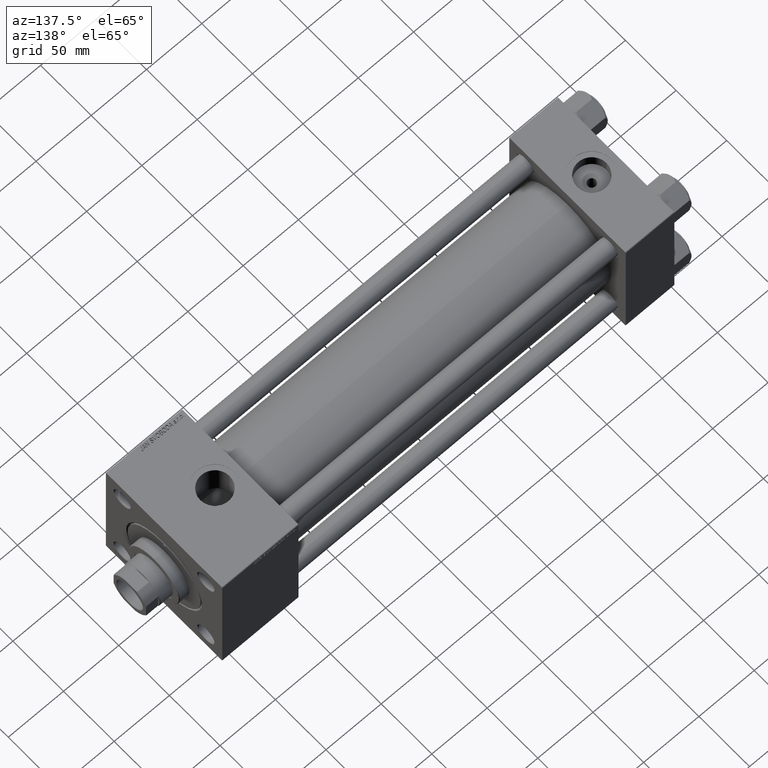
[diagram: clean part render]
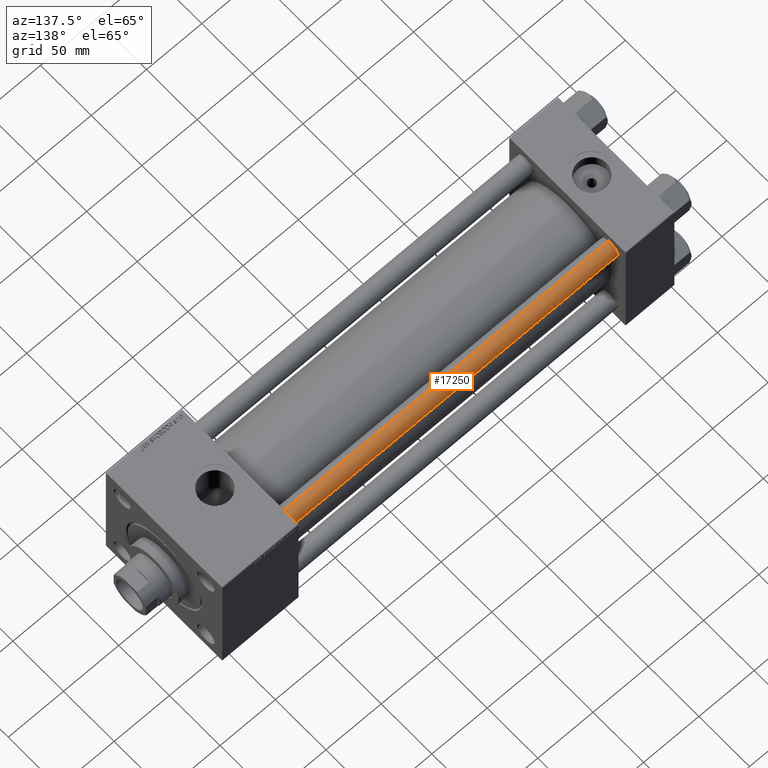
[diagram: same view with one face highlighted and labeled with its STEP entity id]
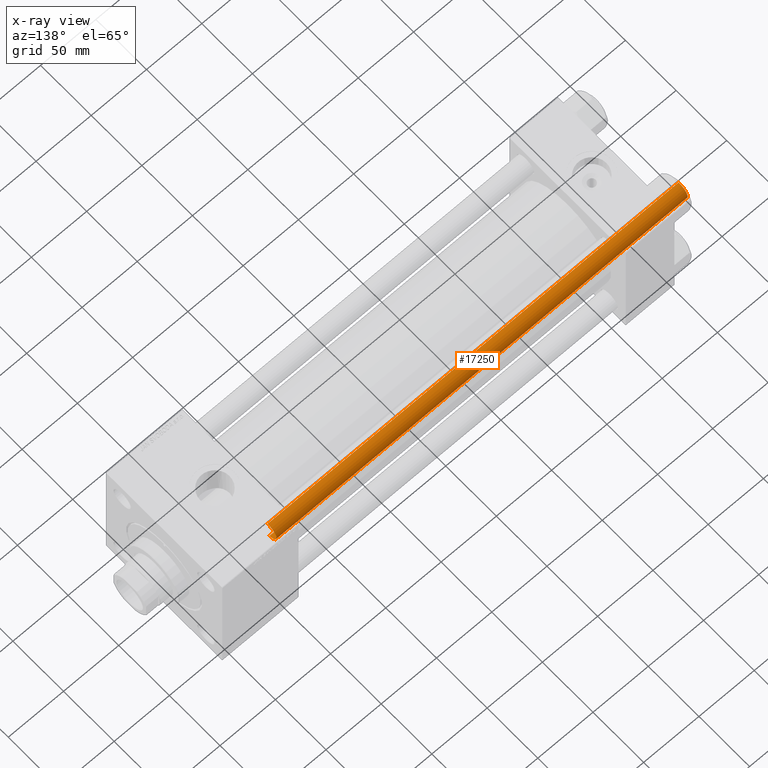
[diagram: x-ray of the same camera — body ghosted, the highlighted face saturated]
A machine part, auxiliary view. The second image highlights one B-rep face of the part: STEP entity #17250.
The next image is the same camera in x-ray: the body ghosted, the highlighted face saturated — about 0% of this face is hidden behind the body in this view.
In plain terms, the highlighted cylindrical surface (edge-blend (fillet) strip) has radius 8 mm, axis along (-1, 0, 0).
Its self-contained STEP definition (entity closure, byte-faithful):
#107 = VERTEX_POINT ( 'NONE', #27677 ) ;
#509 = FACE_OUTER_BOUND ( 'NONE', #46579, .T. ) ;
#859 = AXIS2_PLACEMENT_3D ( 'NONE', #5320, #39594, #16159 ) ;
#3296 = VERTEX_POINT ( 'NONE', #46994 ) ;
#4868 = VECTOR ( 'NONE', #5790, 1000.000000000000000 ) ;
#4938 = CIRCLE ( 'NONE', #11481, 8.000000000000000000 ) ;
#5253 = CARTESIAN_POINT ( 'NONE',  ( 0.000000000000000000, 0.000000000000000000, 0.5000000000000559552 ) ) ;
#5320 = CARTESIAN_POINT ( 'NONE',  ( 0.000000000000000000, 0.000000000000000000, 373.0000000000000000 ) ) ;
#5790 = DIRECTION ( 'NONE',  ( -0.000000000000000000, -0.000000000000000000, -1.000000000000000000 ) ) ;
#7792 = DIRECTION ( 'NONE',  ( 1.000000000000000000, 0.000000000000000000, 0.000000000000000000 ) ) ;
#8873 = EDGE_CURVE ( 'NONE', #107, #42735, #42538, .T. ) ;
#11114 = DIRECTION ( 'NONE',  ( -0.000000000000000000, -0.000000000000000000, -1.000000000000000000 ) ) ;
#11130 = DIRECTION ( 'NONE',  ( 0.000000000000000000, 0.000000000000000000, -1.000000000000000000 ) ) ;
#11481 = AXIS2_PLACEMENT_3D ( 'NONE', #5253, #33529, #48416 ) ;
#11627 = LINE ( 'NONE', #27057, #29973 ) ;
#12240 = EDGE_CURVE ( 'NONE', #17440, #3296, #4938, .T. ) ;
#16159 = DIRECTION ( 'NONE',  ( -1.000000000000000000, 0.000000000000000000, 0.000000000000000000 ) ) ;
#17250 = ADVANCED_FACE ( 'NONE', ( #509 ), #21758, .T. ) ;
#17440 = VERTEX_POINT ( 'NONE', #19928 ) ;
#19928 = CARTESIAN_POINT ( 'NONE',  ( 8.000000000000000000, 9.797174393178825657E-16, 0.5000000000000559552 ) ) ;
#21758 = CYLINDRICAL_SURFACE ( 'NONE', #859, 8.000000000000000000 ) ;
#27057 = CARTESIAN_POINT ( 'NONE',  ( 8.000000000000000000, 9.797174393178825657E-16, 373.0000000000000000 ) ) ;
#27677 = CARTESIAN_POINT ( 'NONE',  ( -8.000000000000000000, 0.000000000000000000, 372.5000000000000000 ) ) ;
#29973 = VECTOR ( 'NONE', #11114, 1000.000000000000000 ) ;
#33529 = DIRECTION ( 'NONE',  ( -0.000000000000000000, -0.000000000000000000, 1.000000000000000000 ) ) ;
#34039 = LINE ( 'NONE', #41749, #4868 ) ;
#35122 = EDGE_CURVE ( 'NONE', #42735, #17440, #11627, .T. ) ;
#38370 = ORIENTED_EDGE ( 'NONE', *, *, #12240, .T. ) ;
#39284 = AXIS2_PLACEMENT_3D ( 'NONE', #43270, #11130, #7792 ) ;
#39594 = DIRECTION ( 'NONE',  ( -0.000000000000000000, -0.000000000000000000, -1.000000000000000000 ) ) ;
#41000 = ORIENTED_EDGE ( 'NONE', *, *, #8873, .T. ) ;
#41749 = CARTESIAN_POINT ( 'NONE',  ( -8.000000000000000000, 0.000000000000000000, 373.0000000000000000 ) ) ;
#42332 = ORIENTED_EDGE ( 'NONE', *, *, #35122, .T. ) ;
#42538 = CIRCLE ( 'NONE', #39284, 8.000000000000000000 ) ;
#42735 = VERTEX_POINT ( 'NONE', #43275 ) ;
#43270 = CARTESIAN_POINT ( 'NONE',  ( 0.000000000000000000, 0.000000000000000000, 372.5000000000000000 ) ) ;
#43275 = CARTESIAN_POINT ( 'NONE',  ( 8.000000000000000000, 9.797174393178825657E-16, 372.5000000000000000 ) ) ;
#44155 = ORIENTED_EDGE ( 'NONE', *, *, #49241, .F. ) ;
#46579 = EDGE_LOOP ( 'NONE', ( #41000, #42332, #38370, #44155 ) ) ;
#46994 = CARTESIAN_POINT ( 'NONE',  ( -8.000000000000000000, 0.000000000000000000, 0.5000000000000559552 ) ) ;
#48416 = DIRECTION ( 'NONE',  ( 1.000000000000000000, 0.000000000000000000, 0.000000000000000000 ) ) ;
#49241 = EDGE_CURVE ( 'NONE', #107, #3296, #34039, .T. ) ;